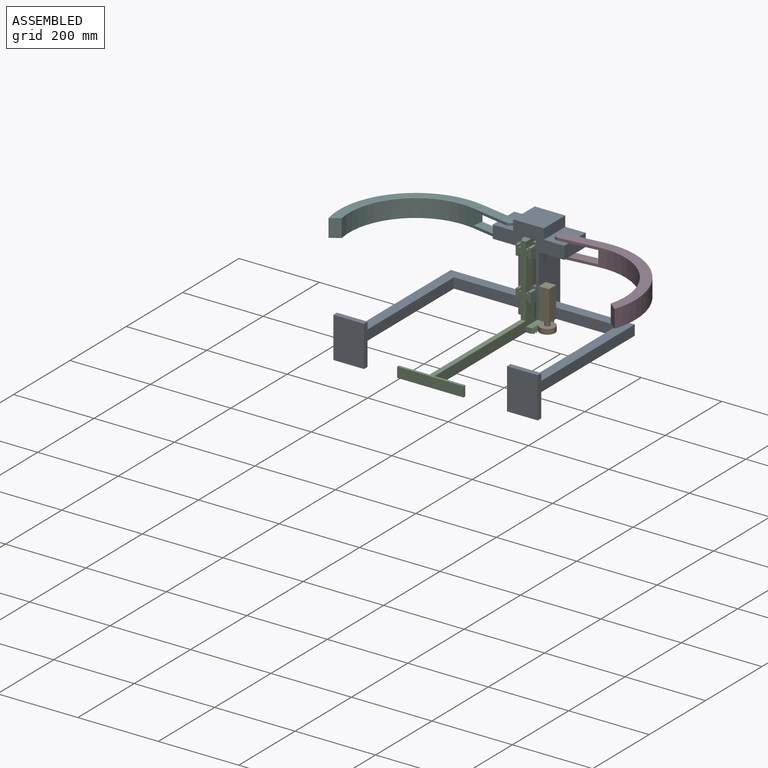
[diagram: assembled view]
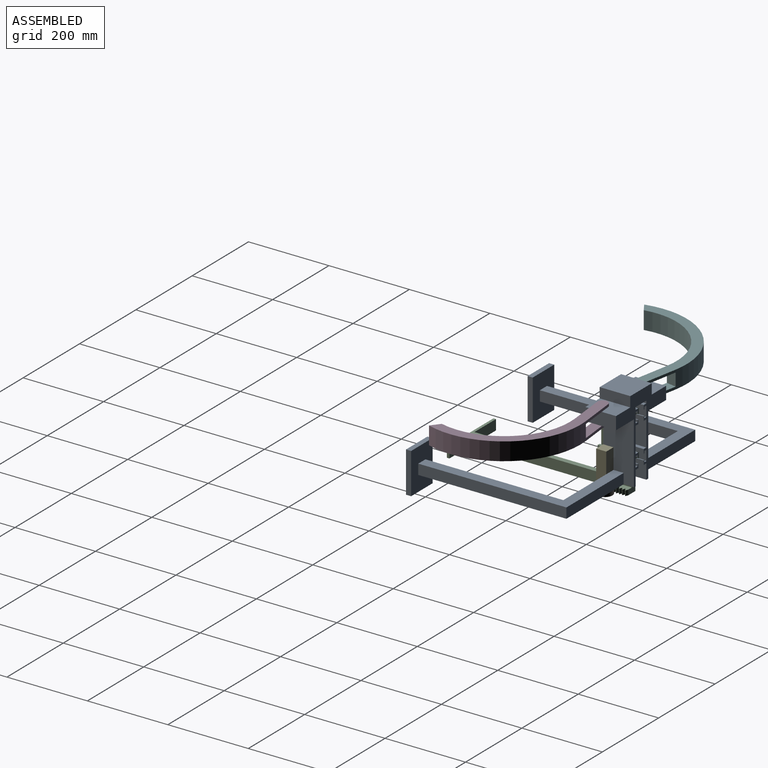
[diagram: assembled view, second angle]
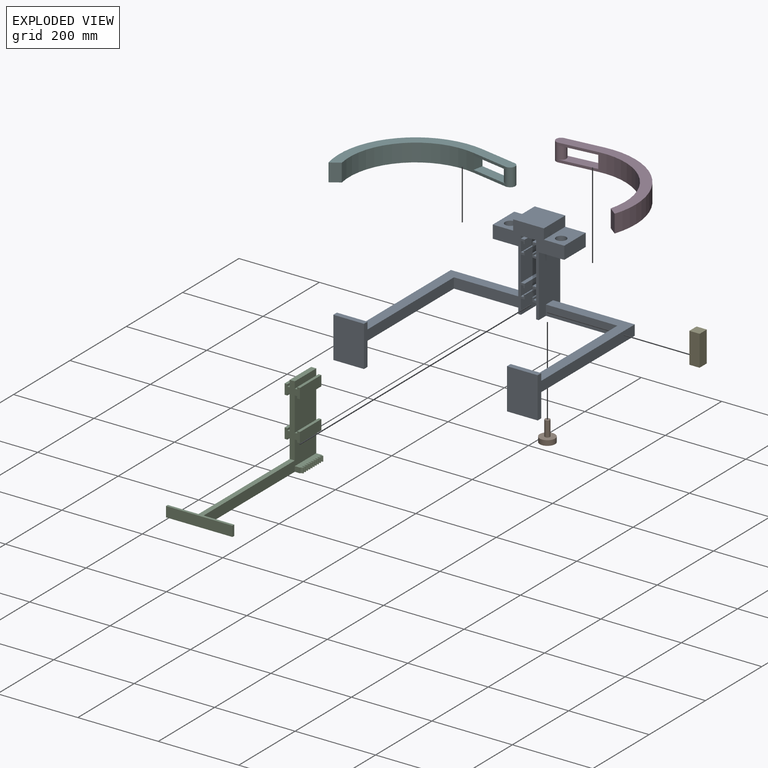
[diagram: exploded view]
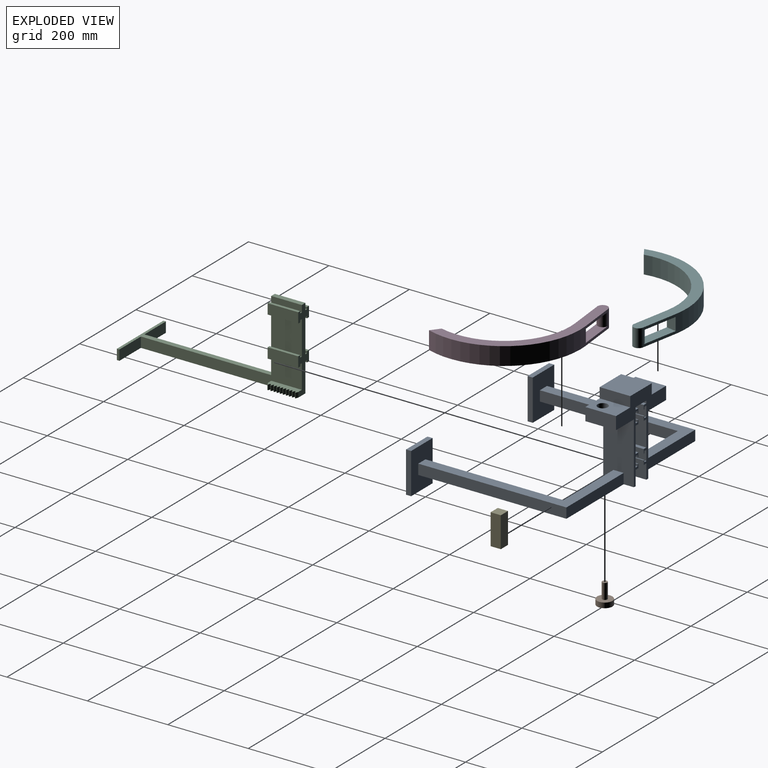
[diagram: exploded view, second angle]
ASSEMBLY  parts=6 mates=5
PART A: 90 faces, bbox 508x406.4x247.7 mm
  f0: plane 152.4x76.2mm, normal (1,0,0), area 10967.7mm2, adj f14,f16,f29,f30,f79,f82,f83
  f1: plane 393.7x209.55mm, normal (0,0,-1), area 14354.8mm2, adj f3,f4,f6,f16,f28,f30,f71,f72
  f2: plane 368.3x203.2mm, normal (0,0,1), area 13870.9mm2, adj f3,f4,f28,f71,f72,f77
  f3: plane 368.3x25.4mm, normal (-1,0,0), area 9354.8mm2, adj f1,f2,f72,f77
  f4: plane 342.9x25.4mm, normal (1,0,0), area 8709.7mm2, adj f1,f2,f71,f77
  f5: plane 76.2x25.4mm, normal (1,0,0), area 1935.5mm2, adj f16,f30,f65,f69
  f6: plane 76.2x36.83mm, normal (1,0,0), area 2806.4mm2, adj f1,f16,f30,f70
  f7: plane 76.2x63.5mm, normal (1,0,0), area 4838.7mm2, adj f16,f30,f60,f64
  f8: plane 76.2x25.4mm, normal (1,0,0), area 1935.5mm2, adj f16,f30,f55,f59
  f9: plane 76.2x25.4mm, normal (-1,0,0), area 1935.5mm2, adj f16,f30,f44,f46
  f10: plane 76.2x36.83mm, normal (-1,0,0), area 2806.4mm2, adj f16,f29,f30,f45
  f11: plane 76.2x63.5mm, normal (-1,0,0), area 4838.7mm2, adj f16,f30,f37,f47
  f12: plane 76.2x25.4mm, normal (-1,0,0), area 1935.5mm2, adj f16,f30,f31,f38
  f13: plane 76.2x63.5mm, normal (0,0,-1), area 4332mm2, adj f16,f20,f21,f28,f30
  f14: plane 76.2x63.5mm, normal (0,0,-1), area 4332mm2, adj f0,f16,f17,f18,f30
  f15: plane 76.2x50.8mm, normal (0,0,1), area 3364.3mm2, adj f16,f20,f21,f22,f30
  f16: plane 209.55x177.8mm, normal (0,-1,0), area 9038.7mm2, adj f0,f1,f5,f6,f7,f8,f9,f10
  f17: plane 76.2x31.75mm, normal (1,0,0), area 2419.3mm2, adj f14,f16,f19,f30
  f18: cylinder r=12.7mm len=31.75mm, axis (0,0,-1), area 2533.5mm2, adj f14,f19
  f19: plane 76.2x50.8mm, normal (0,0,1), area 3364.3mm2, adj f16,f17,f18,f23,f30
  f20: plane 76.2x31.75mm, normal (-1,0,0), area 2419.3mm2, adj f13,f15,f16,f30
  f21: cylinder r=12.7mm len=31.75mm, axis (0,0,-1), area 2533.5mm2, adj f13,f15
  f22: plane 76.2x25.4mm, normal (-1,0,0), area 1935.5mm2, adj f15,f16,f24,f30
  f23: plane 76.2x25.4mm, normal (1,0,0), area 1935.5mm2, adj f16,f19,f24,f30
  f24: plane 76.2x76.2mm, normal (0,0,1), area 5806.4mm2, adj f16,f22,f23,f30
  f25: plane 76.2x6.35mm, normal (1,0,0), area 483.9mm2, adj f16,f27,f30,f54
  f26: plane 76.2x6.35mm, normal (-1,0,0), area 483.9mm2, adj f16,f27,f30,f32
  f27: plane 76.2x38.1mm, normal (0,0,-1), area 2903.2mm2, adj f16,f25,f26,f30
  f28: plane 152.4x76.2mm, normal (-1,0,0), area 10967.7mm2, adj f1,f2,f13,f16,f30,f71,f72
  f29: plane 393.7x209.55mm, normal (0,0,-1), area 14354.8mm2, adj f0,f10,f16,f30,f80,f81,f82,f83
  f30: plane 209.55x177.8mm, normal (0,1,0), area 9038.7mm2, adj f0,f1,f5,f6,f7,f8,f9,f10
  f31: plane 76.2x6.99mm, normal (0,0,-1), area 532.3mm2, adj f12,f16,f30,f33
  f32: plane 76.2x9.53mm, normal (0,0,1), area 725.8mm2, adj f16,f26,f30,f34
  f33: plane 76.2x5.08mm, normal (1,0,0), area 387.1mm2, adj f16,f30,f31,f35
  f34: plane 76.2x10.16mm, normal (-1,0,0), area 774.2mm2, adj f16,f30,f32,f35
  f35: plane 76.2x2.54mm, normal (0,0,-1), area 193.5mm2, adj f16,f30,f33,f34
  f36: plane 76.2x10.16mm, normal (-1,0,0), area 774.2mm2, adj f16,f30,f37,f40
  f37: plane 76.2x9.53mm, normal (0,0,-1), area 725.8mm2, adj f11,f16,f30,f36
  f38: plane 76.2x6.99mm, normal (0,0,1), area 532.3mm2, adj f12,f16,f30,f39
  f39: plane 76.2x5.08mm, normal (1,0,0), area 387.1mm2, adj f16,f30,f38,f40
  f40: plane 76.2x2.54mm, normal (0,0,1), area 193.5mm2, adj f16,f30,f36,f39
  f41: plane 76.2x5.08mm, normal (1,0,0), area 387.1mm2, adj f16,f30,f42,f44
  f42: plane 76.2x2.54mm, normal (0,0,1), area 193.5mm2, adj f16,f30,f41,f43
  f43: plane 76.2x10.16mm, normal (-1,0,0), area 774.2mm2, adj f16,f30,f42,f45
  f44: plane 76.2x6.99mm, normal (0,0,1), area 532.3mm2, adj f9,f16,f30,f41
  f45: plane 76.2x9.53mm, normal (0,0,-1), area 725.8mm2, adj f10,f16,f30,f43
  f46: plane 76.2x6.99mm, normal (0,0,-1), area 532.3mm2, adj f9,f16,f30,f48
  f47: plane 76.2x9.53mm, normal (0,0,1), area 725.8mm2, adj f11,f16,f30,f49
  f48: plane 76.2x5.08mm, normal (1,0,0), area 387.1mm2, adj f16,f30,f46,f50
  f49: plane 76.2x10.16mm, normal (-1,0,0), area 774.2mm2, adj f16,f30,f47,f50
  f50: plane 76.2x2.54mm, normal (0,0,-1), area 193.5mm2, adj f16,f30,f48,f49
  f51: plane 76.2x5.08mm, normal (-1,0,0), area 387.1mm2, adj f16,f30,f52,f55
  f52: plane 76.2x2.54mm, normal (0,0,-1), area 193.5mm2, adj f16,f30,f51,f53
  f53: plane 76.2x10.16mm, normal (1,0,0), area 774.2mm2, adj f16,f30,f52,f54
  f54: plane 76.2x9.53mm, normal (0,0,1), area 725.8mm2, adj f16,f25,f30,f53
  f55: plane 76.2x6.99mm, normal (0,0,-1), area 532.3mm2, adj f8,f16,f30,f51
  f56: plane 76.2x10.16mm, normal (1,0,0), area 774.2mm2, adj f16,f30,f57,f60
  f57: plane 76.2x2.54mm, normal (0,0,1), area 193.5mm2, adj f16,f30,f56,f58
  f58: plane 76.2x5.08mm, normal (-1,0,0), area 387.1mm2, adj f16,f30,f57,f59
  f59: plane 76.2x6.99mm, normal (0,0,1), area 532.3mm2, adj f8,f16,f30,f58
  f60: plane 76.2x9.53mm, normal (0,0,-1), area 725.8mm2, adj f7,f16,f30,f56
  f61: plane 76.2x5.08mm, normal (-1,0,0), area 387.1mm2, adj f16,f30,f62,f65
  f62: plane 76.2x2.54mm, normal (0,0,-1), area 193.5mm2, adj f16,f30,f61,f63
  f63: plane 76.2x10.16mm, normal (1,0,0), area 774.2mm2, adj f16,f30,f62,f64
  f64: plane 76.2x9.53mm, normal (0,0,1), area 725.8mm2, adj f7,f16,f30,f63
  f65: plane 76.2x6.99mm, normal (0,0,-1), area 532.3mm2, adj f5,f16,f30,f61
  f66: plane 76.2x5.08mm, normal (-1,0,0), area 387.1mm2, adj f16,f30,f67,f69
  f67: plane 76.2x2.54mm, normal (0,0,1), area 193.5mm2, adj f16,f30,f66,f68
  f68: plane 76.2x10.16mm, normal (1,0,0), area 774.2mm2, adj f16,f30,f67,f70
  f69: plane 76.2x6.99mm, normal (0,0,1), area 532.3mm2, adj f5,f16,f30,f66
  f70: plane 76.2x9.53mm, normal (0,0,-1), area 725.8mm2, adj f6,f16,f30,f68
  f71: plane 177.8x25.4mm, normal (0,-1,0), area 4516.1mm2, adj f1,f2,f4,f28
  f72: plane 203.2x25.4mm, normal (0,1,0), area 5161.3mm2, adj f1,f2,f3,f28
  f73: plane 76.2x12.7mm, normal (0,0,1), area 967.7mm2, adj f74,f76,f77,f78
  f74: plane 101.6x12.7mm, normal (-1,0,0), area 1290.3mm2, adj f73,f75,f77,f78
  f75: plane 76.2x12.7mm, normal (0,0,-1), area 967.7mm2, adj f74,f76,f77,f78
  f76: plane 101.6x12.7mm, normal (1,0,0), area 1290.3mm2, adj f73,f75,f77,f78
  f77: plane 101.6x76.2mm, normal (0,1,0), area 7096.8mm2, adj f1,f2,f3,f4,f73,f74,f75,f76
  f78: plane 101.6x76.2mm, normal (0,-1,0), area 7741.9mm2, adj f73,f74,f75,f76
  f79: plane 368.3x203.2mm, normal (0,0,1), area 13870.9mm2, adj f0,f80,f81,f82,f83,f88
  f80: plane 368.3x25.4mm, normal (1,0,0), area 9354.8mm2, adj f29,f79,f83,f88
  f81: plane 342.9x25.4mm, normal (-1,0,0), area 8709.7mm2, adj f29,f79,f82,f88
  f82: plane 177.8x25.4mm, normal (0,-1,0), area 4516.1mm2, adj f0,f29,f79,f81
  f83: plane 203.2x25.4mm, normal (0,1,0), area 5161.3mm2, adj f0,f29,f79,f80
  f84: plane 76.2x12.7mm, normal (0,0,1), area 967.7mm2, adj f85,f87,f88,f89
  f85: plane 101.6x12.7mm, normal (1,0,0), area 1290.3mm2, adj f84,f86,f88,f89
  f86: plane 76.2x12.7mm, normal (0,0,-1), area 967.7mm2, adj f85,f87,f88,f89
  f87: plane 101.6x12.7mm, normal (-1,0,0), area 1290.3mm2, adj f84,f86,f88,f89
  f88: plane 101.6x76.2mm, normal (0,1,0), area 7096.8mm2, adj f29,f79,f80,f81,f84,f85,f86,f87
  f89: plane 101.6x76.2mm, normal (0,-1,0), area 7741.9mm2, adj f84,f85,f86,f87
PART B: 5 faces, bbox 38.1x38.1x50.8 mm
  f0: cylinder r=6.35mm len=38.1mm, axis (0,0,1), area 1520.1mm2, adj f1,f2
  f1: plane 12.7x12.7mm, normal (0,0,1), area 126.7mm2, adj f0
  f2: plane 38.1x38.1mm, normal (0,0,1), area 1013.4mm2, adj f0,f3
  f3: cylinder r=19.05mm len=38.1mm, axis (0,0,-1), area 1520.1mm2, adj f2,f4
  f4: plane 38.1x38.1mm, normal (0,0,-1), area 1140.1mm2, adj f3
PART C: 86 faces, bbox 165.1x406.4x203.2 mm
  f0: plane 400.05x72.39mm, normal (1,0,0), area 12774.2mm2, adj f3,f4,f6,f7,f16,f80,f81,f84
  f1: plane 83.82x76.2mm, normal (1,0,0), area 6387.1mm2, adj f3,f7,f10,f22
  f2: plane 76.2x12.7mm, normal (0,0,1), area 967.7mm2, adj f3,f7,f8,f25
  f3: plane 177.8x38.1mm, normal (0,-1,0), area 3316.1mm2, adj f0,f1,f2,f4,f8,f9,f10,f11
  f4: plane 330.2x165.1mm, normal (0,0,1), area 5161.3mm2, adj f0,f3,f5,f23,f82,f83,f84,f85
  f5: plane 165.1x25.4mm, normal (0,-1,0), area 4193.5mm2, adj f4,f6,f83,f85
  f6: plane 406.4x165.1mm, normal (0,0,-1), area 7338.7mm2, adj f0,f5,f7,f23,f40,f41,f42,f43
  f7: plane 203.2x38.1mm, normal (0,1,0), area 3800mm2, adj f0,f1,f2,f6,f8,f9,f10,f11
  f8: plane 76.2x16.51mm, normal (1,0,0), area 1258.1mm2, adj f2,f3,f7,f9
  f9: plane 76.2x5.72mm, normal (0,0,1), area 435.5mm2, adj f3,f7,f8,f15
  f10: plane 76.2x5.72mm, normal (0,0,-1), area 435.5mm2, adj f1,f3,f7,f11
  f11: plane 76.2x5.08mm, normal (-1,0,0), area 387.1mm2, adj f3,f7,f10,f12
  f12: plane 76.2x6.99mm, normal (0,0,-1), area 532.3mm2, adj f3,f7,f11,f13
  f13: plane 76.2x25.4mm, normal (1,0,0), area 1935.5mm2, adj f3,f7,f12,f14
  f14: plane 76.2x6.99mm, normal (0,0,1), area 532.3mm2, adj f3,f7,f13,f15
  f15: plane 76.2x5.08mm, normal (-1,0,0), area 387.1mm2, adj f3,f7,f9,f14
  f16: plane 76.2x5.72mm, normal (0,0,-1), area 435.5mm2, adj f0,f3,f7,f17
  f17: plane 76.2x5.08mm, normal (-1,0,0), area 387.1mm2, adj f3,f7,f16,f18
  f18: plane 76.2x6.99mm, normal (0,0,-1), area 532.3mm2, adj f3,f7,f17,f19
  f19: plane 76.2x25.4mm, normal (1,0,0), area 1935.5mm2, adj f3,f7,f18,f20
  f20: plane 76.2x6.99mm, normal (0,0,1), area 532.3mm2, adj f3,f7,f19,f21
  f21: plane 76.2x5.08mm, normal (-1,0,0), area 387.1mm2, adj f3,f7,f20,f22
  f22: plane 76.2x5.72mm, normal (0,0,1), area 435.5mm2, adj f1,f3,f7,f21
  f23: plane 400.05x72.39mm, normal (-1,0,0), area 13741.9mm2, adj f3,f4,f6,f7,f33,f82
  f24: plane 83.82x76.2mm, normal (-1,0,0), area 6387.1mm2, adj f3,f7,f27,f39
  f25: plane 76.2x16.51mm, normal (-1,0,0), area 1258.1mm2, adj f2,f3,f7,f26
  f26: plane 76.2x5.72mm, normal (0,0,1), area 435.5mm2, adj f3,f7,f25,f32
  f27: plane 76.2x5.72mm, normal (0,0,-1), area 435.5mm2, adj f3,f7,f24,f28
  f28: plane 76.2x5.08mm, normal (1,0,0), area 387.1mm2, adj f3,f7,f27,f29
  f29: plane 76.2x6.99mm, normal (0,0,-1), area 532.3mm2, adj f3,f7,f28,f30
  f30: plane 76.2x25.4mm, normal (-1,0,0), area 1935.5mm2, adj f3,f7,f29,f31
  f31: plane 76.2x6.99mm, normal (0,0,1), area 532.3mm2, adj f3,f7,f30,f32
  f32: plane 76.2x5.08mm, normal (1,0,0), area 387.1mm2, adj f3,f7,f26,f31
  f33: plane 76.2x5.72mm, normal (0,0,-1), area 435.5mm2, adj f3,f7,f23,f34
  f34: plane 76.2x5.08mm, normal (1,0,0), area 387.1mm2, adj f3,f7,f33,f35
  f35: plane 76.2x6.99mm, normal (0,0,-1), area 532.3mm2, adj f3,f7,f34,f36
  f36: plane 76.2x25.4mm, normal (-1,0,0), area 1935.5mm2, adj f3,f7,f35,f37
  f37: plane 76.2x6.99mm, normal (0,0,1), area 532.3mm2, adj f3,f7,f36,f38
  f38: plane 76.2x5.08mm, normal (1,0,0), area 387.1mm2, adj f3,f7,f37,f39
  f39: plane 76.2x5.72mm, normal (0,0,1), area 435.5mm2, adj f3,f7,f24,f38
  f40: plane 12.7x6.35mm, normal (0.37,0.93,0), area 86.9mm2, adj f6,f7,f41,f81
  f41: plane 12.7x1.27mm, normal (1,0,0), area 16.1mm2, adj f6,f40,f42,f81
  f42: plane 12.7x6.35mm, normal (0.37,-0.93,0), area 86.9mm2, adj f6,f41,f43,f81
  f43: plane 12.7x1.27mm, normal (1,0,0), area 16.1mm2, adj f6,f42,f44,f81
  f44: plane 12.7x6.35mm, normal (0.37,0.93,0), area 86.9mm2, adj f6,f43,f45,f81
  f45: plane 12.7x1.27mm, normal (1,0,0), area 16.1mm2, adj f6,f44,f46,f81
  f46: plane 12.7x6.35mm, normal (0.37,-0.93,0), area 86.9mm2, adj f6,f45,f47,f81
  f47: plane 12.7x1.27mm, normal (1,0,0), area 16.1mm2, adj f6,f46,f48,f81
  f48: plane 12.7x6.35mm, normal (0.37,0.93,0), area 86.9mm2, adj f6,f47,f49,f81
  f49: plane 12.7x1.27mm, normal (1,0,0), area 16.1mm2, adj f6,f48,f50,f81
  f50: plane 12.7x6.35mm, normal (0.37,-0.93,0), area 86.9mm2, adj f6,f49,f51,f81
  f51: plane 12.7x1.27mm, normal (1,0,0), area 16.1mm2, adj f6,f50,f52,f81
  f52: plane 12.7x6.35mm, normal (0.37,0.93,0), area 86.9mm2, adj f6,f51,f53,f81
  f53: plane 12.7x1.27mm, normal (1,0,0), area 16.1mm2, adj f6,f52,f54,f81
  f54: plane 12.7x6.35mm, normal (0.37,-0.93,0), area 86.9mm2, adj f6,f53,f55,f81
  f55: plane 12.7x1.27mm, normal (1,0,0), area 16.1mm2, adj f6,f54,f56,f81
  f56: plane 12.7x6.35mm, normal (0.37,0.93,0), area 86.9mm2, adj f6,f55,f57,f81
  f57: plane 12.7x1.27mm, normal (1,0,0), area 16.1mm2, adj f6,f56,f58,f81
  f58: plane 12.7x6.35mm, normal (0.37,-0.93,0), area 86.9mm2, adj f6,f57,f59,f81
  f59: plane 12.7x1.27mm, normal (1,0,0), area 16.1mm2, adj f6,f58,f60,f81
  f60: plane 12.7x6.35mm, normal (0.37,0.93,0), area 86.9mm2, adj f6,f59,f61,f81
  f61: plane 12.7x1.27mm, normal (1,0,0), area 16.1mm2, adj f6,f60,f62,f81
  f62: plane 12.7x6.35mm, normal (0.37,-0.93,0), area 86.9mm2, adj f6,f61,f63,f81
  f63: plane 12.7x1.27mm, normal (1,0,0), area 16.1mm2, adj f6,f62,f64,f81
  f64: plane 12.7x6.35mm, normal (0.37,0.93,0), area 86.9mm2, adj f6,f63,f65,f81
  f65: plane 12.7x1.27mm, normal (1,0,0), area 16.1mm2, adj f6,f64,f66,f81
  f66: plane 12.7x6.35mm, normal (0.37,-0.93,0), area 86.9mm2, adj f6,f65,f67,f81
  f67: plane 12.7x1.27mm, normal (1,0,0), area 16.1mm2, adj f6,f66,f68,f81
  f68: plane 12.7x6.35mm, normal (0.37,0.93,0), area 86.9mm2, adj f6,f67,f69,f81
  f69: plane 12.7x1.27mm, normal (1,0,0), area 16.1mm2, adj f6,f68,f70,f81
  f70: plane 12.7x6.35mm, normal (0.37,-0.93,0), area 86.9mm2, adj f6,f69,f71,f81
  f71: plane 12.7x1.27mm, normal (1,0,0), area 16.1mm2, adj f6,f70,f72,f81
  f72: plane 12.7x6.35mm, normal (0.37,0.93,0), area 86.9mm2, adj f6,f71,f73,f81
  f73: plane 12.7x1.27mm, normal (1,0,0), area 16.1mm2, adj f6,f72,f74,f81
  f74: plane 12.7x6.35mm, normal (0.37,-0.93,0), area 86.9mm2, adj f6,f73,f75,f81
  f75: plane 12.7x1.27mm, normal (1,0,0), area 16.1mm2, adj f6,f74,f76,f81
  f76: plane 12.7x6.35mm, normal (0.37,0.93,0), area 86.9mm2, adj f6,f75,f77,f81
  f77: plane 12.7x1.27mm, normal (1,0,0), area 16.1mm2, adj f6,f76,f78,f81
  f78: plane 12.7x6.35mm, normal (0.37,-0.93,0), area 86.9mm2, adj f6,f77,f79,f81
  f79: plane 12.7x1.27mm, normal (1,0,0), area 16.1mm2, adj f6,f78,f80,f81
  f80: plane 12.7x12.7mm, normal (0,-1,0), area 161.3mm2, adj f0,f6,f79,f81
  f81: plane 76.2x19.05mm, normal (0,0,1), area 1209.7mm2, adj f0,f7,f40,f41,f42,f43,f44,f45
  f82: plane 76.2x25.4mm, normal (0,1,0), area 1935.5mm2, adj f4,f6,f23,f83
  f83: plane 25.4x6.35mm, normal (-1,0,0), area 161.3mm2, adj f4,f5,f6,f82
  f84: plane 76.2x25.4mm, normal (0,1,0), area 1935.5mm2, adj f0,f4,f6,f85
  f85: plane 25.4x6.35mm, normal (1,0,0), area 161.3mm2, adj f4,f5,f6,f84
PART D: 13 faces, bbox 139.7x382.8x44.5 mm
  f0: cylinder r=12.7mm len=44.45mm, axis (0,0,-1), area 3040.2mm2, adj f1,f2,f3,f7,f8,f10,f11,f12
  f1: plane 382.81x139.7mm, normal (0,0,1), area 11526.1mm2, adj f0,f4,f5,f6,f10,f11
  f2: plane 84.88x82.99mm, normal (0,0,1), area 2117.1mm2, adj f0,f3,f7,f9
  f3: plane 67.28x64.68mm, normal (-0.72,-0.69,0), area 592.6mm2, adj f0,f2,f4,f8
  f4: cylinder r=165.1mm len=266.82mm, axis (0,0,1), area 14249.5mm2, adj f1,f3,f5,f8,f9,f11
  f5: plane 44.45x27.21mm, normal (-1,0,0), area 1209.3mm2, adj f1,f4,f6,f8
  f6: cylinder r=190.5mm len=311.63mm, axis (0,0,1), area 16907mm2, adj f1,f5,f7,f8,f9,f10
  f7: plane 67.28x64.68mm, normal (0.72,0.69,0), area 592.6mm2, adj f0,f2,f6,f8
  f8: plane 382.81x139.7mm, normal (0,0,-1), area 11526.1mm2, adj f0,f3,f4,f5,f6,f7
  f9: plane 31.75x18.31mm, normal (-0.69,0.72,0), area 806.4mm2, adj f2,f4,f6,f12
  f10: plane 67.28x64.68mm, normal (0.72,0.69,0), area 592.6mm2, adj f0,f1,f6,f12
  f11: plane 67.28x64.68mm, normal (-0.72,-0.69,0), area 592.6mm2, adj f0,f1,f4,f12
  f12: plane 84.88x82.99mm, normal (0,0,-1), area 2117.1mm2, adj f0,f9,f10,f11
PART E: 8 faces, bbox 25.4x25.4x76.2 mm
  f0: plane 25.4x25.4mm, normal (0,0,1), area 645.2mm2, adj f1,f3,f4,f5
  f1: plane 76.2x25.4mm, normal (0,-1,0), area 1935.5mm2, adj f0,f2,f4,f5
  f2: plane 25.4x25.4mm, normal (0,0,-1), area 518.5mm2, adj f1,f3,f4,f5,f6
  f3: plane 76.2x25.4mm, normal (0,1,0), area 1935.5mm2, adj f0,f2,f4,f5
  f4: plane 76.2x25.4mm, normal (1,0,0), area 1935.5mm2, adj f0,f1,f2,f3
  f5: plane 76.2x25.4mm, normal (-1,0,0), area 1935.5mm2, adj f0,f1,f2,f3
  f6: cylinder r=6.35mm len=25.4mm, axis (0,0,-1), area 1013.4mm2, adj f2,f7
  f7: plane 12.7x12.7mm, normal (0,0,-1), area 126.7mm2, adj f6
PART F: 13 faces, bbox 139.7x382.8x44.5 mm
  f0: cylinder r=12.7mm len=44.45mm, axis (0,0,-1), area 3040.2mm2, adj f1,f2,f3,f7,f8,f10,f11,f12
  f1: plane 382.81x139.7mm, normal (0,0,1), area 11526.1mm2, adj f0,f4,f5,f6,f10,f11
  f2: plane 84.88x82.99mm, normal (0,0,1), area 2117.1mm2, adj f0,f3,f7,f9
  f3: plane 67.28x64.68mm, normal (0.72,-0.69,0), area 592.6mm2, adj f0,f2,f4,f8
  f4: cylinder r=165.1mm len=266.82mm, axis (0,0,1), area 14249.5mm2, adj f1,f3,f5,f8,f9,f11
  f5: plane 44.45x27.21mm, normal (1,0,0), area 1209.3mm2, adj f1,f4,f6,f8
  f6: cylinder r=190.5mm len=311.63mm, axis (0,0,1), area 16907mm2, adj f1,f5,f7,f8,f9,f10
  f7: plane 67.28x64.68mm, normal (-0.72,0.69,0), area 592.6mm2, adj f0,f2,f6,f8
  f8: plane 382.81x139.7mm, normal (0,0,-1), area 11526.1mm2, adj f0,f3,f4,f5,f6,f7
  f9: plane 31.75x18.31mm, normal (0.69,0.72,0), area 806.4mm2, adj f2,f4,f6,f12
  f10: plane 67.28x64.68mm, normal (-0.72,0.69,0), area 592.6mm2, adj f0,f1,f6,f12
  f11: plane 67.28x64.68mm, normal (0.72,-0.69,0), area 592.6mm2, adj f0,f1,f4,f12
  f12: plane 84.88x82.99mm, normal (0,0,-1), area 2117.1mm2, adj f0,f9,f10,f11
PLACE A at identity fixed
PLACE B rot(axis=(0,0,1),3deg) t=(0.73,-2,0)mm
PLACE C t=(0,-18.41,0)mm
PLACE D rot(axis=(0,0,1),52.1deg) t=(44.53,-40.31,0)mm
PLACE E rot(axis=(0,0,1),90deg) t=(50.8,-25.4,0)mm
PLACE F rot(axis=(0,0,-1),56.8deg) t=(-49.97,-41.64,0)mm
MATE slider C.f3 <-> A.f16  axis (0,-1,0) through (19.05,-18.41,-97.79)mm
MATE revolute A.f21 <-> F.f0  axis (0,0,-1) through (-63.5,25.4,0)mm
MATE revolute B.f0 <-> E.f6  axis (0,0,1) through (38.1,12.7,-127)mm
MATE fastened E.f3 <-> A.f0  axis (-1,0,0) through (25.4,0,-152.4)mm
MATE revolute D.f0 <-> A.f18  axis (0,0,1) through (63.5,25.4,0)mm
